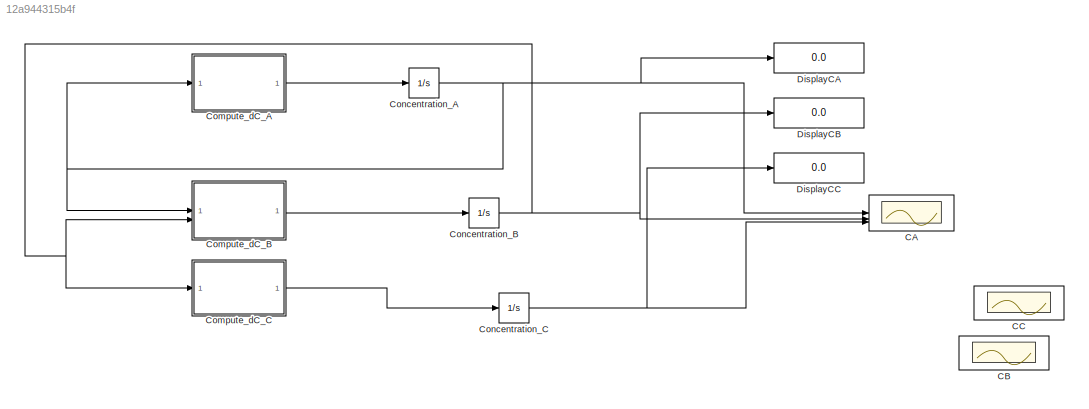
MODEL slx_12a944315b4f
KIND model
CONFIG AbsTol = auto
CONFIG EnableMultiTasking = off
CONFIG FixedStep = auto
CONFIG MaxStep = auto
CONFIG MinStep = auto
CONFIG RelTol = 1e-3
CONFIG SampleTimeConstraint = Unconstrained
CONFIG SolverName = FixedStepAuto
CONFIG StartTime = 0.0
CONFIG StopTime = 50
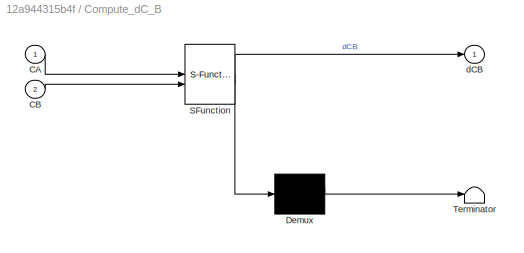
BLOCK [SubSystem] 	Compute_dC_B
  ErrorFcn = Stateflow.Translate.translate
  PermitHierarchicalResolution = ExplicitOnly
  SFBlockType = MATLAB Function
  TreatAsAtomicUnit = on
BLOCK [Demux] 	Compute_dC_B/ Demux 
  Outputs = 1
BLOCK [S-Function] 	Compute_dC_B/ SFunction 
  EnableBusSupport = off
  FunctionName = sf_sfun
  PortCounts = [2 2]
  SFcnIsStateOwnerBlock = off
  SFunctionDeploymentMode = off
  Tag = Stateflow S-Function 1
BLOCK [Terminator] 	Compute_dC_B/ Terminator 
BLOCK [Inport] 	Compute_dC_B/CA
BLOCK [Inport] 	Compute_dC_B/CB
  Port = 2
BLOCK [Outport] 	Compute_dC_B/dCB
BLOCK [Scope] CA
  ActiveDisplayYMaximum = 1.1249999997606503
  ActiveDisplayYMinimum = -0.1249999978458536
  DisplayFullPath = on
  Floating = off
  GraphicalSettings = {"Style":{"BackgroundColor":[0.8,0.8,0.8],"AxesColor":[0.9019607843137255,0.9019607843137255,0.9019607843137255],"LabelsColor":[0,0,0],"PreserveColors":false,"Visible":[true,true,true],"LineStyle":["-","-","-"],"LineWidth":[2,1.5,1.5],"BarWidth":[0.9,0.9,0.9],"LineColor":[[1,0,0],"auto","auto"],"LineFaceAlpha":[1,1,1],"LineEdgeAlpha":[1,1,1],"Marker":["none","none","none"],"FontSize":8.5,"LineTrue...<+2482ch>
  MultipleDisplayCache = [{"MaxYLimMag":1.1249999997606503,"MaxYLimReal":1.1249999997606503,"MinYLimMag":0,"MinYLimReal":-0.1249999978458536,"PlotAsMagnitudePhase":false,"ShowGrid":true,"ShowLegend":true,"Title":"Batch Reactor Simulation: Concentration Profile of A --> B --> C Over Time","YLabel":"Concentration (mol\/L)"}]
  NumInputPorts = 3
  ScopeFrameLocation = window
  ShowLegend = on
  ShowTimeAxisLabel = on
  TimeAxisLabels = All
  Title = Batch Reactor Simulation: Concentration Profile of A --> B --> C Over Time
  Visible = on
  WasSavedAsWebScope = on
  WindowPosition = [70.000000,513.000000,863.000000,508.000000,]
  YLabel = Concentration (mol/L)
BLOCK [Scope] CB
  ActiveDisplayYMaximum = 0.55983752533333331
  ActiveDisplayYMinimum = -0.062204169481481469
  DataLoggingVariableName = ScopeData1
  DisplayFullPath = on
  Floating = off
  GraphicalSettings = {"Style":{"BackgroundColor":[0.6509803921568628,0.6509803921568628,0.6509803921568628],"AxesColor":[0.9019607843137255,0.9019607843137255,0.9019607843137255],"LabelsColor":[0.14901960784313725,0.14901960784313725,0.14901960784313725],"PreserveColors":true,"Visible":[true,true],"LineStyle":["-","-"],"LineWidth":[3,1.5],"BarWidth":[0.9,0.9],"LineColor":[[0,0,1],"auto"],"LineFaceAlpha":[1,1],"LineEdg...<+2544ch>
  MultipleDisplayCache = [{"MaxYLimMag":0.55983752533333331,"MaxYLimReal":0.55983752533333331,"MinYLimMag":0,"MinYLimReal":-0.062204169481481469,"PlotAsMagnitudePhase":false,"ShowGrid":true,"ShowLegend":true,"Title":"Batch Reactor Simulation: Concentration Profile of B Over Time","YLabel":"Concentration of B (mol\/L)"}]
  NumInputPorts = 1
  ScopeFrameLocation = window
  ShowLegend = on
  ShowTimeAxisLabel = on
  Title = Batch Reactor Simulation: Concentration Profile of B Over Time
  WasSavedAsWebScope = on
  WindowPosition = [973.000000,515.000000,865.000000,506.000000,]
  YLabel = Concentration of B (mol/L)
BLOCK [Scope] CC
  ActiveDisplayYMaximum = 1.1600155046903078
  ActiveDisplayYMinimum = -0.15236578853621635
  DataLoggingVariableName = ScopeData2
  DisplayFullPath = on
  Floating = off
  GraphicalSettings = {"AxesScalingProperties":{"AlignXAxis":"Center","AlignYAxis":"Center","AutoScaleXAxisLimits":false,"AxesScaling":"Manual","AxesScalingNumUpdates":10,"ExpandOnly":true,"ScaleAxesLimitsAtStop":false,"XAxisDataRange":100,"YAxisDataRange":80},"DisplayProperties":{"ColorOrder":["auto","auto","auto","auto","auto","auto","auto","auto","auto","auto","auto","auto","auto","auto","auto","auto","auto","auto",...<+2372ch>
  MultipleDisplayCache = [{"MaxYLimMag":1.12489825133702,"MaxYLimReal":1.1600155046903078,"MinYLimMag":0,"MinYLimReal":-0.15236578853621635,"PlotAsMagnitudePhase":false,"ShowGrid":true,"ShowLegend":true,"Title":"Batch Reactor Simulation: Concentration Profile of C Over Time","YLabel":"Concentration of C (mol\/L)"}]
  NumInputPorts = 1
  ScopeFrameLocation = window
  ShowLegend = on
  ShowTimeAxisLabel = on
  Title = Batch Reactor Simulation: Concentration Profile of C Over Time
  WasSavedAsWebScope = on
  WindowPosition = [1065.000000,249.000000,814.000000,509.000000,]
  YLabel = Concentration of C (mol/L)
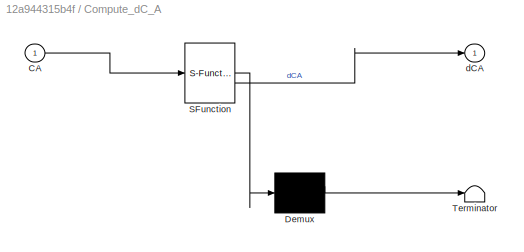
BLOCK [SubSystem] Compute_dC_A
  ErrorFcn = Stateflow.Translate.translate
  PermitHierarchicalResolution = ExplicitOnly
  SFBlockType = MATLAB Function
  TreatAsAtomicUnit = on
BLOCK [Demux] Compute_dC_A/ Demux 
  Outputs = 1
BLOCK [S-Function] Compute_dC_A/ SFunction 
  EnableBusSupport = off
  FunctionName = sf_sfun
  PortCounts = [1 2]
  SFcnIsStateOwnerBlock = off
  SFunctionDeploymentMode = off
  Tag = Stateflow S-Function 2
BLOCK [Terminator] Compute_dC_A/ Terminator 
BLOCK [Inport] Compute_dC_A/CA
BLOCK [Outport] Compute_dC_A/dCA
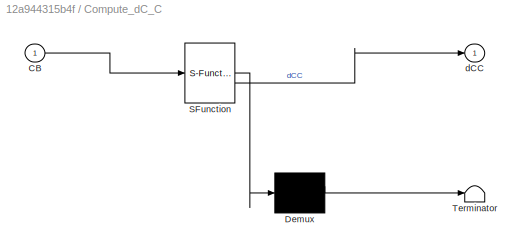
BLOCK [SubSystem] Compute_dC_C
  ErrorFcn = Stateflow.Translate.translate
  PermitHierarchicalResolution = ExplicitOnly
  SFBlockType = MATLAB Function
  TreatAsAtomicUnit = on
BLOCK [Demux] Compute_dC_C/ Demux 
  Outputs = 1
BLOCK [S-Function] Compute_dC_C/ SFunction 
  EnableBusSupport = off
  FunctionName = sf_sfun
  PortCounts = [1 2]
  SFcnIsStateOwnerBlock = off
  SFunctionDeploymentMode = off
  Tag = Stateflow S-Function 3
BLOCK [Terminator] Compute_dC_C/ Terminator 
BLOCK [Inport] Compute_dC_C/CB
BLOCK [Outport] Compute_dC_C/dCC
BLOCK [Integrator] Concentration_A
  InitialCondition = 5
  LimitOutput = on
  LowerSaturationLimit = 0
  UpperSaturationLimit = 1
BLOCK [Integrator] Concentration_B
  LimitOutput = on
  LowerSaturationLimit = 0
  UpperSaturationLimit = 1
BLOCK [Integrator] Concentration_C
  LimitOutput = on
  LowerSaturationLimit = 0
  UpperSaturationLimit = 1
BLOCK [Display] DisplayCA
  Decimation = 1
BLOCK [Display] DisplayCB
  Decimation = 1
BLOCK [Display] DisplayCC
  Decimation = 1
LINE 	Compute_dC_B:1 -> Concentration_B:1
LINE Compute_dC_A:1 -> Concentration_A:1
LINE Compute_dC_C:1 -> Concentration_C:1
NET Concentration_A:1 -> 	Compute_dC_B:1, CA:1, Compute_dC_A:1, DisplayCA:1
NET Concentration_B:1 -> 	Compute_dC_B:2, CA:2, Compute_dC_C:1, DisplayCB:1
NET Concentration_C:1 -> CA:3, DisplayCC:1
note: NET lines group one-source signal fan-out (src -> all destinations, sorted); 1:1 wires keep LINE
CHART Compute_dC_A states=1 transitions=1
  STATE_LABEL 'eML_blk_kernel()'
  STATE_LABEL 'SCRIPT:\nfunction dCA = dCA_func(CA)\nk1 = 0.4;\ndCA = -k1 * CA;\nend\n'
CHART Compute_dC_C states=1 transitions=1
  STATE_LABEL 'eML_blk_kernel()'
  STATE_LABEL 'SCRIPT:\nfunction dCC = dCC_func(CB)\nk2 = 0.2;\ndCC = k2 * CB;\nend\n'
CHART 	Compute_dC_B states=1 transitions=1
  STATE_LABEL 'eML_blk_kernel()'
  STATE_LABEL 'SCRIPT:\nfunction dCB = dCB_func(CA, CB)\nk1 = 0.4;\nk2 = 0.2;\ndCB = k1 * CA - k2 * CB;\nend\n'
CHART  states=0 transitions=0
CHART  states=0 transitions=0
CHART  states=0 transitions=0
